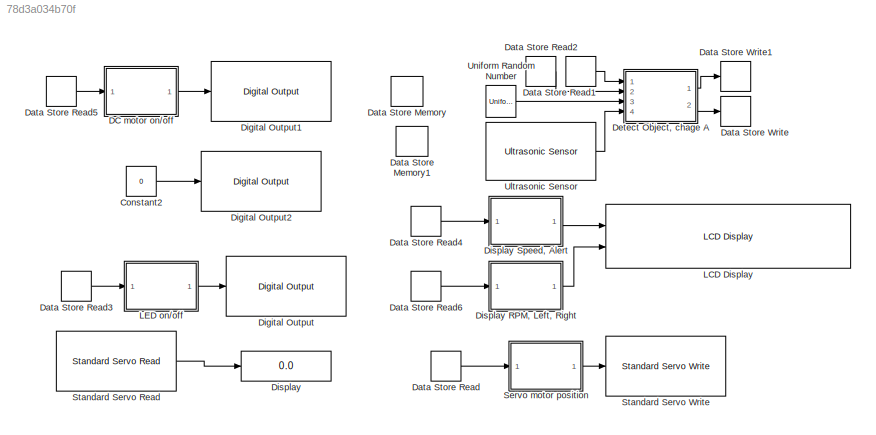
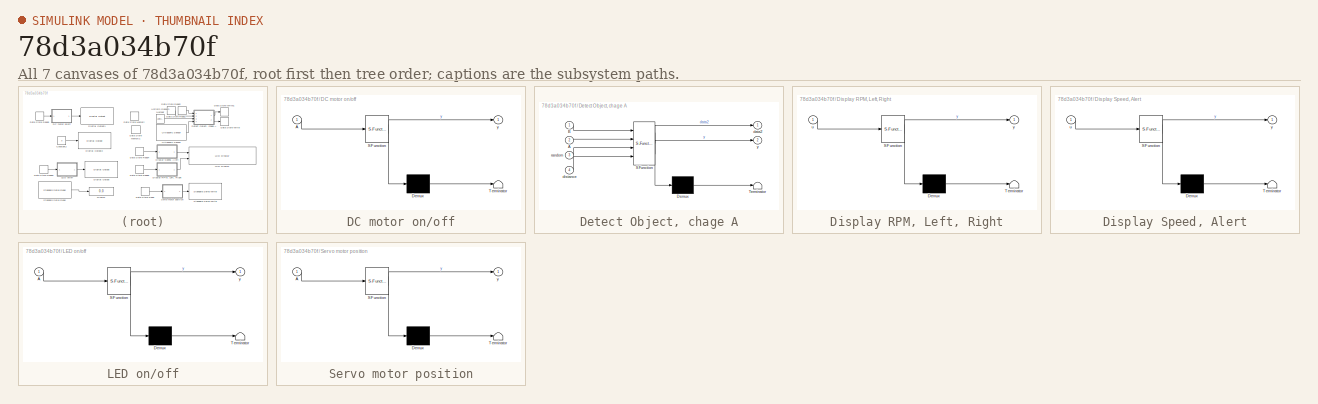
[diagram: thumbnail index - all 7 canvases of the model, root first then tree order]
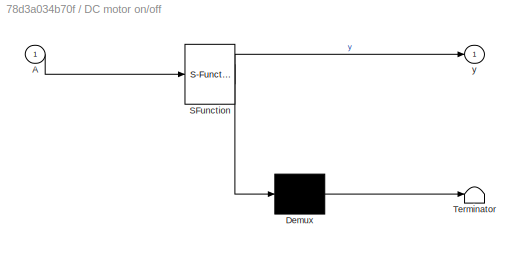
MODEL slx_78d3a034b70f
KIND model
CONFIG AbsTol = auto
CONFIG EnableMultiTasking = on
CONFIG FixedStep = auto
CONFIG MaxStep = auto
CONFIG MinStep = auto
CONFIG RelTol = 1e-3
CONFIG SampleTimeConstraint = Unconstrained
CONFIG Solver = FixedStepAuto
CONFIG SolverName = FixedStepAuto
CONFIG StartTime = 0.0
CONFIG StopTime = inf
BLOCK [Constant] Constant2
  Value = 0
BLOCK [SubSystem] DC motor on//off
  ErrorFcn = Stateflow.Translate.translate
  PermitHierarchicalResolution = ExplicitOnly
  Ports = [1, 1]
  RequestExecContextInheritance = off
  SFBlockType = MATLAB Function
  TreatAsAtomicUnit = on
BLOCK [Demux] DC motor on//off/ Demux 
  Outputs = 1
  Ports = [1, 1]
BLOCK [S-Function] DC motor on//off/ SFunction 
  EnableBusSupport = on
  FunctionName = sf_sfun
  PortCounts = [1 2]
  Ports = [1, 2]
  SFcnIsStateOwnerBlock = off
  SFunctionDeploymentMode = off
  Tag = Stateflow S-Function Project_Robot 5
BLOCK [Terminator] DC motor on//off/ Terminator 
BLOCK [Inport] DC motor on//off/A
  IconDisplay = Port number
BLOCK [Outport] DC motor on//off/y
  IconDisplay = Port number
BLOCK [DataStoreMemory] Data Store Memory
  ReadBeforeWriteMsg = warning
  ShowAdditionalParam = off
  WriteAfterReadMsg = warning
  WriteAfterWriteMsg = warning
BLOCK [DataStoreMemory] Data Store Memory1
  DataStoreName = B
  ReadBeforeWriteMsg = warning
  ShowAdditionalParam = off
  WriteAfterReadMsg = warning
  WriteAfterWriteMsg = warning
BLOCK [DataStoreRead] Data Store Read
  Ports = [0, 1]
BLOCK [DataStoreRead] Data Store Read1
  DataStoreName = B
  Ports = [0, 1]
BLOCK [DataStoreRead] Data Store Read2
  Ports = [0, 1]
BLOCK [DataStoreRead] Data Store Read3
  Ports = [0, 1]
BLOCK [DataStoreRead] Data Store Read4
  Ports = [0, 1]
BLOCK [DataStoreRead] Data Store Read5
  Ports = [0, 1]
BLOCK [DataStoreRead] Data Store Read6
  Ports = [0, 1]
BLOCK [DataStoreWrite] Data Store Write
  Ports = [1]
BLOCK [DataStoreWrite] Data Store Write1
  DataStoreName = B
  Ports = [1]
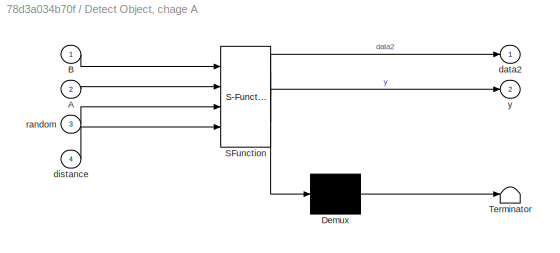
BLOCK [SubSystem] Detect Object, chage A
  ErrorFcn = Stateflow.Translate.translate
  PermitHierarchicalResolution = ExplicitOnly
  Ports = [4, 2]
  RequestExecContextInheritance = off
  SFBlockType = MATLAB Function
  TreatAsAtomicUnit = on
BLOCK [Demux] Detect Object, chage A/ Demux 
  Outputs = 1
  Ports = [1, 1]
BLOCK [S-Function] Detect Object, chage A/ SFunction 
  EnableBusSupport = on
  FunctionName = sf_sfun
  PortCounts = [4 3]
  Ports = [4, 3]
  SFcnIsStateOwnerBlock = off
  SFunctionDeploymentMode = off
  Tag = Stateflow S-Function Project_Robot 2
BLOCK [Terminator] Detect Object, chage A/ Terminator 
BLOCK [Inport] Detect Object, chage A/A
  IconDisplay = Port number
  Port = 2
BLOCK [Inport] Detect Object, chage A/B
  IconDisplay = Port number
BLOCK [Outport] Detect Object, chage A/data2
  IconDisplay = Port number
BLOCK [Inport] Detect Object, chage A/distance
  IconDisplay = Port number
  Port = 4
BLOCK [Inport] Detect Object, chage A/random
  IconDisplay = Port number
  Port = 3
BLOCK [Outport] Detect Object, chage A/y
  IconDisplay = Port number
  Port = 2
BLOCK [Reference] Digital Output  REF=arduinolib/Digital Output
  Ports = [1]
  SourceBlock = arduinolib/Digital Output
  SourceProductBaseCode = ARDUINO
  SourceProductName = Simulink Support Package for Arduino Hardware
  SourceType = Arduino Digital Output
BLOCK [Reference] Digital Output1  REF=arduinolib/Digital Output
  Ports = [1]
  SourceBlock = arduinolib/Digital Output
  SourceProductBaseCode = ARDUINO
  SourceProductName = Simulink Support Package for Arduino Hardware
  SourceType = Arduino Digital Output
BLOCK [Reference] Digital Output2  REF=arduinolib/Digital Output
  Ports = [1]
  SourceBlock = arduinolib/Digital Output
  SourceProductBaseCode = ARDUINO
  SourceProductName = Simulink Support Package for Arduino Hardware
  SourceType = Arduino Digital Output
BLOCK [Display] Display
  Decimation = 1
  Ports = [1]
BLOCK [SubSystem] Display RPM, Left, Right
  ErrorFcn = Stateflow.Translate.translate
  PermitHierarchicalResolution = ExplicitOnly
  Ports = [1, 1]
  RequestExecContextInheritance = off
  SFBlockType = MATLAB Function
  TreatAsAtomicUnit = on
BLOCK [Demux] Display RPM, Left, Right/ Demux 
  Outputs = 1
  Ports = [1, 1]
BLOCK [S-Function] Display RPM, Left, Right/ SFunction 
  EnableBusSupport = on
  FunctionName = sf_sfun
  PortCounts = [1 2]
  Ports = [1, 2]
  SFcnIsStateOwnerBlock = off
  SFunctionDeploymentMode = off
  Tag = Stateflow S-Function Project_Robot 6
BLOCK [Terminator] Display RPM, Left, Right/ Terminator 
BLOCK [Inport] Display RPM, Left, Right/u
  IconDisplay = Port number
BLOCK [Outport] Display RPM, Left, Right/y
  IconDisplay = Port number
BLOCK [SubSystem] Display Speed, Alert
  ErrorFcn = Stateflow.Translate.translate
  PermitHierarchicalResolution = ExplicitOnly
  Ports = [1, 1]
  RequestExecContextInheritance = off
  SFBlockType = MATLAB Function
  TreatAsAtomicUnit = on
BLOCK [Demux] Display Speed, Alert/ Demux 
  Outputs = 1
  Ports = [1, 1]
BLOCK [S-Function] Display Speed, Alert/ SFunction 
  EnableBusSupport = on
  FunctionName = sf_sfun
  PortCounts = [1 2]
  Ports = [1, 2]
  SFcnIsStateOwnerBlock = off
  SFunctionDeploymentMode = off
  Tag = Stateflow S-Function Project_Robot 4
BLOCK [Terminator] Display Speed, Alert/ Terminator 
BLOCK [Inport] Display Speed, Alert/u
  IconDisplay = Port number
BLOCK [Outport] Display Speed, Alert/y
  IconDisplay = Port number
BLOCK [Reference] LCD Display  REF=LCDlib/LCD Display
  Ports = [2]
  SourceBlock = LCDlib/LCD Display
  SourceProductName = LCD Library
  SourceType = LiquidCrystalDisplay.block.LCD
BLOCK [SubSystem] LED on//off
  ErrorFcn = Stateflow.Translate.translate
  PermitHierarchicalResolution = ExplicitOnly
  Ports = [1, 1]
  RequestExecContextInheritance = off
  SFBlockType = MATLAB Function
  TreatAsAtomicUnit = on
BLOCK [Demux] LED on//off/ Demux 
  Outputs = 1
  Ports = [1, 1]
BLOCK [S-Function] LED on//off/ SFunction 
  EnableBusSupport = on
  FunctionName = sf_sfun
  PortCounts = [1 2]
  Ports = [1, 2]
  SFcnIsStateOwnerBlock = off
  SFunctionDeploymentMode = off
  Tag = Stateflow S-Function Project_Robot 3
BLOCK [Terminator] LED on//off/ Terminator 
BLOCK [Inport] LED on//off/A
  IconDisplay = Port number
BLOCK [Outport] LED on//off/y
  IconDisplay = Port number
BLOCK [SubSystem] Servo motor position
  ErrorFcn = Stateflow.Translate.translate
  PermitHierarchicalResolution = ExplicitOnly
  Ports = [1, 1]
  RequestExecContextInheritance = off
  SFBlockType = MATLAB Function
  TreatAsAtomicUnit = on
BLOCK [Demux] Servo motor position/ Demux 
  Outputs = 1
  Ports = [1, 1]
BLOCK [S-Function] Servo motor position/ SFunction 
  EnableBusSupport = on
  FunctionName = sf_sfun
  PortCounts = [1 2]
  Ports = [1, 2]
  SFcnIsStateOwnerBlock = off
  SFunctionDeploymentMode = off
  Tag = Stateflow S-Function Project_Robot 1
BLOCK [Terminator] Servo motor position/ Terminator 
BLOCK [Inport] Servo motor position/A
  IconDisplay = Port number
BLOCK [Outport] Servo motor position/y
  IconDisplay = Port number
BLOCK [Reference] Standard Servo Read  REF=arduinolib/Standard Servo Read
  Ports = [0, 1]
  SourceBlock = arduinolib/Standard Servo Read
  SourceProductBaseCode = ARDUINO
  SourceProductName = Simulink Support Package for Arduino Hardware
  SourceType = Arduino Standard Servo Read
BLOCK [Reference] Standard Servo Write  REF=arduinolib/Standard Servo Write
  Ports = [1]
  SourceBlock = arduinolib/Standard Servo Write
  SourceProductBaseCode = ARDUINO
  SourceProductName = Simulink Support Package for Arduino Hardware
  SourceType = Arduino Standard Servo Write
BLOCK [Reference] Ultrasonic Sensor  REF=arduinosensorlib/Ultrasonic Sensor
  Ports = [0, 1]
  SourceBlock = arduinosensorlib/Ultrasonic Sensor
  SourceProductName = Simulink Support for Arduino Sensors
  SourceType = codertarget.arduinobase.internal.arduinoUltrasonic
BLOCK [UniformRandomNumber] Uniform Random Number
  Minimum = 0
  SampleTime = 0.5
LINE Constant2:1 -> Digital Output2:1
LINE DC motor on//off:1 -> Digital Output1:1
LINE Data Store Read1:1 -> Detect Object, chage A:1
LINE Data Store Read2:1 -> Detect Object, chage A:2
LINE Data Store Read3:1 -> LED on//off:1
LINE Data Store Read4:1 -> Display Speed, Alert:1
LINE Data Store Read5:1 -> DC motor on//off:1
LINE Data Store Read6:1 -> Display RPM, Left, Right:1
LINE Data Store Read:1 -> Servo motor position:1
LINE Detect Object, chage A:1 -> Data Store Write1:1
LINE Detect Object, chage A:2 -> Data Store Write:1
LINE Display RPM, Left, Right:1 -> LCD Display:2
LINE Display Speed, Alert:1 -> LCD Display:1
LINE LED on//off:1 -> Digital Output:1
LINE Servo motor position:1 -> Standard Servo Write:1
LINE Standard Servo Read:1 -> Display:1
LINE Ultrasonic Sensor:1 -> Detect Object, chage A:4
LINE Uniform Random Number:1 -> Detect Object, chage A:3
CHART Servo motor position states=1 transitions=1
  STATE_LABEL 'eML_blk_kernel()'
  STATE_LABEL 'SCRIPT:\nfunction y = fcn(A)\nif A == 2\n    y = 90;\nelse\n    if A < 0.5\n        y = 0;\n    else\n        y = 180;\n    end\nend'
CHART Detect Object, chage A states=1 transitions=1
  STATE_LABEL 'eML_blk_kernel()'
  STATE_LABEL 'SCRIPT:\nfunction [data2, y]= fcn( B, A, random, distance)\nif  distance < 0.10\n    if B == 0\n        y = random;\n        data2 = 1;\n    else\n        y = A;\n        data2 = 1;\n    end\nelse\n    y = 2;\n    data2 = 0;\n    \nend'
CHART LED on//off states=1 transitions=1
  STATE_LABEL 'eML_blk_kernel()'
  STATE_LABEL 'SCRIPT:\n\nfunction y = fcn(A)\nif A == 2\n    y = 0;\nelse\n    y= 1;\nend\n'
CHART Display Speed, Alert states=1 transitions=1
  STATE_LABEL 'eML_blk_kernel()'
  STATE_LABEL "SCRIPT:\nfunction y = fcn(u)\nif u == 2\n    y =uint8('DC Motor RPM');\nelse\n    \n    y = uint8('ALERT!!     ');\n    \nend\n"
CHART DC motor on//off states=1 transitions=1
  STATE_LABEL 'eML_blk_kernel()'
  STATE_LABEL 'SCRIPT:\nfunction y = fcn(A)\nif A==2\n    y =1;\nelse\n    y =0;\nend\n\n'
CHART Display RPM, Left, Right states=1 transitions=1
  STATE_LABEL 'eML_blk_kernel()'
  STATE_LABEL "SCRIPT:\nfunction y = fcn(u)\nif u == 2\n    y =uint8('300          ');\nelse\n    if u< 0.5 \n    y = uint8('Turning Left ');\n    else\n        y= uint8('Turning Right');\n    end\nend\n"
